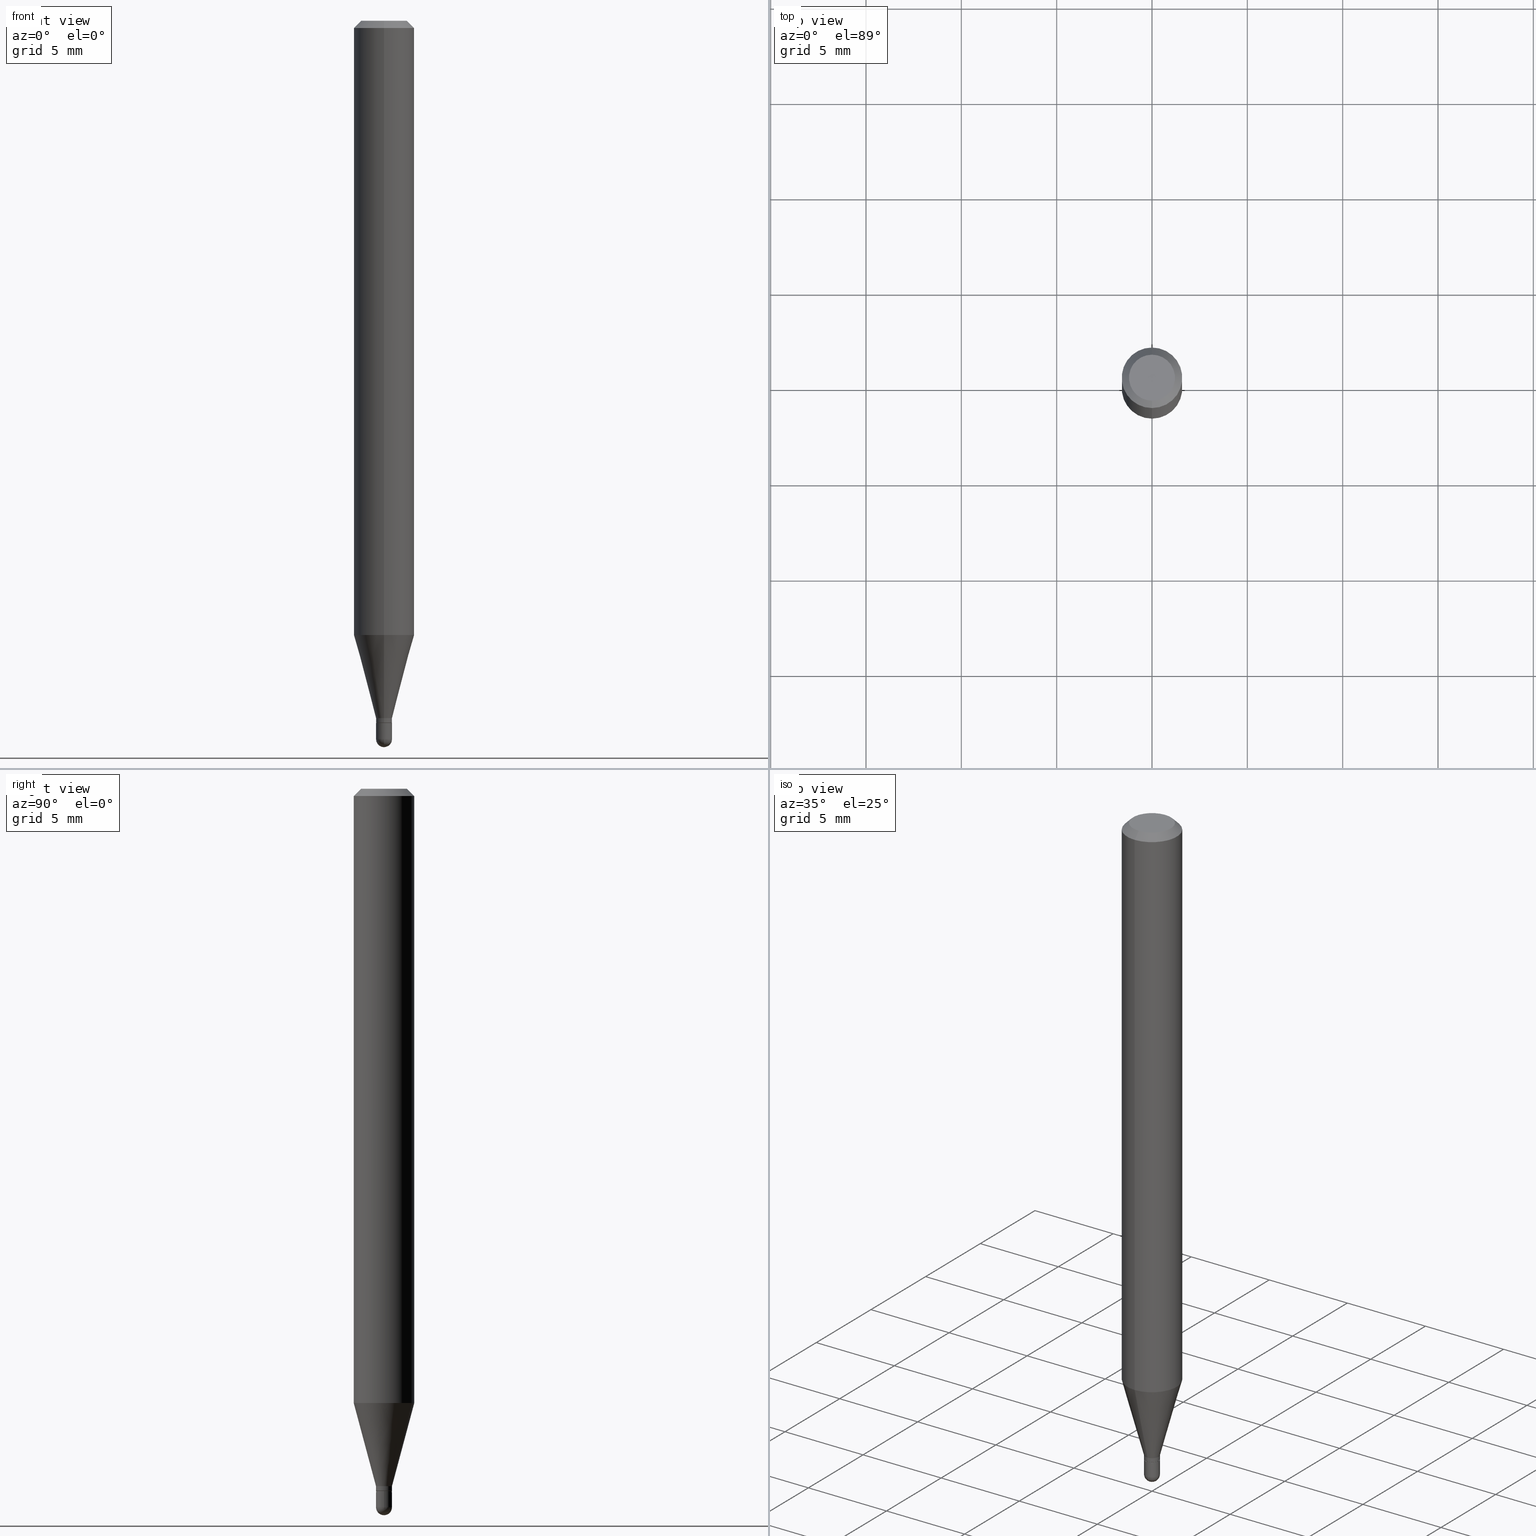
[diagram: canonical four-view strip — front | top / right | iso, engineering-drawing reading convention]
A machine part, canonical four-view strip (front | top / right | iso — engineering-drawing reading convention). The complete STEP part file that produces these views, byte-faithful:
ISO-10303-21;
HEADER;
FILE_DESCRIPTION (( 'STEP AP203' ),
    '1' );
FILE_NAME ('00768.STEP',
    '2024-03-07T18:16:10',
    ( '' ),
    ( '' ),
    'SwSTEP 2.0',
    'SolidWorks 2023',
    '' );
FILE_SCHEMA (( 'CONFIG_CONTROL_DESIGN' ));
ENDSEC;

DATA;
#1 = VERTEX_POINT ( 'NONE', #143 ) ;
#2 = FACE_OUTER_BOUND ( 'NONE', #406, .T. ) ;
#3 = CLOSED_SHELL ( 'NONE', ( #85, #151, #293, #424, #470 ) ) ;
#4 = DIRECTION ( 'NONE',  ( -6.982962677686265922E-15, -1.000000000000000000, 3.491465602701382301E-15 ) ) ;
#5 = CC_DESIGN_APPROVAL ( #358, ( #15 ) ) ;
#6 = CARTESIAN_POINT ( 'NONE',  ( 0.01650000000000000078, -1.152188841818234264E-16, 8.045691680063296230E-31 ) ) ;
#7 = EDGE_CURVE ( 'NONE', #153, #1, #486, .T. ) ;
#8 = CYLINDRICAL_SURFACE ( 'NONE', #72, 0.01650000000000000078 ) ;
#9 = VERTEX_POINT ( 'NONE', #274 ) ;
#10 = CARTESIAN_POINT ( 'NONE',  ( 2.806643806252725111E-16, 0.01649999999999489375, -1.440000000000000169 ) ) ;
#11 = VECTOR ( 'NONE', #231, 39.37007874015748143 ) ;
#12 = LOCAL_TIME ( 13, 16, 10.00000000000000000, #381 ) ;
#13 = ORIENTED_EDGE ( 'NONE', *, *, #111, .F. ) ;
#14 = DIRECTION ( 'NONE',  ( -2.445468806185136597E-29, 3.491481338843145583E-15, 1.000000000000000000 ) ) ;
#15 = PRODUCT_DEFINITION ( 'UNKNOWN', '', #139, #218 ) ;
#16 = ORIENTED_EDGE ( 'NONE', *, *, #411, .F. ) ;
#17 = CARTESIAN_POINT ( 'NONE',  ( 0.01650000000000000078, -5.177866825504383900E-15, -1.450000000000000178 ) ) ;
#18 = PERSON_AND_ORGANIZATION ( #322, #448 ) ;
#19 = VERTEX_POINT ( 'NONE', #455 ) ;
#20 = LENGTH_MEASURE_WITH_UNIT ( LENGTH_MEASURE( 0.02539999999999999897 ), #299 );
#21 = CALENDAR_DATE ( 2024, 7, 3 ) ;
#22 = EDGE_LOOP ( 'NONE', ( #155, #375, #98, #261 ) ) ;
#23 = CIRCLE ( 'NONE', #109, 0.01649999999999997649 ) ;
#24 = DIRECTION ( 'NONE',  ( 1.000000000000000000, 0.000000000000000000, 0.000000000000000000 ) ) ;
#25 = DATE_AND_TIME ( #21, #12 ) ;
#26 = ADVANCED_FACE ( 'NONE', ( #279 ), #229, .T. ) ;
#27 = FACE_OUTER_BOUND ( 'NONE', #419, .T. ) ;
#28 = CARTESIAN_POINT ( 'NONE',  ( 3.668219692011300648E-31, -5.237198404052076484E-17, -0.01500000000000000812 ) ) ;
#29 = CARTESIAN_POINT ( 'NONE',  ( -4.287811248607203282E-16, -0.06250000000000005551, -0.01499999999999979128 ) ) ;
#30 = ORIENTED_EDGE ( 'NONE', *, *, #313, .F. ) ;
#31 = CIRCLE ( 'NONE', #277, 0.01600000000000000033 ) ;
#32 = CONICAL_SURFACE ( 'NONE', #401, 0.06250000000000000000, 0.7853981633974483900 ) ;
#33 = VERTEX_POINT ( 'NONE', #198 ) ;
#34 = FACE_OUTER_BOUND ( 'NONE', #135, .T. ) ;
#35 = DIRECTION ( 'NONE',  ( 1.839019923739605048E-15, 0.2588190451025256245, 0.9659258262890669799 ) ) ;
#36 = EDGE_CURVE ( 'NONE', #357, #196, #31, .T. ) ;
#37 = DIRECTION ( 'NONE',  ( -6.982962677686266711E-15, -1.000000000000000000, 3.491465602701382696E-15 ) ) ;
#38 = CARTESIAN_POINT ( 'NONE',  ( 1.152188841818595907E-16, 0.01649999999999480702, -1.483500000000000263 ) ) ;
#39 = CIRCLE ( 'NONE', #45, 0.01649999999999992445 ) ;
#40 = LOCAL_TIME ( 13, 16, 10.00000000000000000, #185 ) ;
#41 = DIRECTION ( 'NONE',  ( -2.445479794674199112E-29, 3.491465602701382301E-15, 1.000000000000000000 ) ) ;
#42 = DIRECTION ( 'NONE',  ( 2.438088387897960049E-29, -3.491481338843145188E-15, -1.000000000000000000 ) ) ;
#43 = CARTESIAN_POINT ( 'NONE',  ( 2.166956045097350736E-46, -3.093811083820953725E-32, -8.861067058564863072E-18 ) ) ;
#44 = EDGE_CURVE ( 'NONE', #450, #412, #328, .T. ) ;
#45 = AXIS2_PLACEMENT_3D ( 'NONE', #108, #498, #351 ) ;
#46 = AXIS2_PLACEMENT_3D ( 'NONE', #404, #211, #86 ) ;
#47 = ORIENTED_EDGE ( 'NONE', *, *, #356, .T. ) ;
#48 = ORIENTED_EDGE ( 'NONE', *, *, #175, .F. ) ;
#49 = CARTESIAN_POINT ( 'NONE',  ( 3.626441949598504219E-29, -5.181633233392400831E-15, -1.483500000000000263 ) ) ;
#50 = COORDINATED_UNIVERSAL_TIME_OFFSET ( 5, 0, .BEHIND. ) ;
#51 = CIRCLE ( 'NONE', #371, 0.06250000000000000000 ) ;
#52 = ORIENTED_EDGE ( 'NONE', *, *, #311, .F. ) ;
#53 = LINE ( 'NONE', #6, #379 ) ;
#54 = ORIENTED_EDGE ( 'NONE', *, *, #68, .T. ) ;
#55 = CARTESIAN_POINT ( 'NONE',  ( 0.000000000000000000, 0.000000000000000000, 0.000000000000000000 ) ) ;
#56 = DATE_TIME_ROLE ( 'classification_date' ) ;
#57 = CARTESIAN_POINT ( 'NONE',  ( 3.545945702277588825E-29, -5.062625123917004495E-15, -1.450000000000000178 ) ) ;
#58 = EDGE_CURVE ( 'NONE', #1, #153, #39, .T. ) ;
#59 = APPLICATION_PROTOCOL_DEFINITION ( 'international standard', 'config_control_design', 1994, #461 ) ;
#60 = APPROVAL_DATE_TIME ( #410, #358 ) ;
#61 = PLANE ( 'NONE',  #121 ) ;
#62 = CONICAL_SURFACE ( 'NONE', #508, 0.01600000000000000033, 0.7853981633974739252 ) ;
#63 = VECTOR ( 'NONE', #238, 39.37007874015748143 ) ;
#64 =( CONVERSION_BASED_UNIT ( 'INCH', #20 ) LENGTH_UNIT ( ) NAMED_UNIT ( #459 ) );
#65 = DIRECTION ( 'NONE',  ( -2.445479794674199112E-29, 3.491465602701382301E-15, 1.000000000000000000 ) ) ;
#66 = LINE ( 'NONE', #390, #337 ) ;
#67 = CARTESIAN_POINT ( 'NONE',  ( 3.545945702277588825E-29, -5.062625123917004495E-15, -1.450000000000000178 ) ) ;
#68 = EDGE_CURVE ( 'NONE', #450, #102, #66, .T. ) ;
#69 = ORIENTED_EDGE ( 'NONE', *, *, #368, .T. ) ;
#70 = FACE_OUTER_BOUND ( 'NONE', #93, .T. ) ;
#71 = DIRECTION ( 'NONE',  ( -2.445479794674199112E-29, 3.491465602701382301E-15, 1.000000000000000000 ) ) ;
#72 = AXIS2_PLACEMENT_3D ( 'NONE', #444, #125, #92 ) ;
#73 = ORIENTED_EDGE ( 'NONE', *, *, #393, .T. ) ;
#74 = CARTESIAN_POINT ( 'NONE',  ( 3.668219692011300648E-31, -5.237198404052076484E-17, -0.01500000000000000812 ) ) ;
#75 = APPROVAL ( #221, 'UNSPECIFIED' ) ;
#76 = ORIENTED_EDGE ( 'NONE', *, *, #111, .T. ) ;
#77 = LINE ( 'NONE', #116, #278 ) ;
#78 = ADVANCED_FACE ( 'NONE', ( #223 ), #499, .T. ) ;
#79 = ORIENTED_EDGE ( 'NONE', *, *, #469, .T. ) ;
#80 = PLANE ( 'NONE',  #212 ) ;
#81 = AXIS2_PLACEMENT_3D ( 'NONE', #226, #145, #301 ) ;
#82 = AXIS2_PLACEMENT_3D ( 'NONE', #468, #41, #467 ) ;
#83 = DIRECTION ( 'NONE',  ( -2.445479794674199112E-29, 3.491465602701382301E-15, 1.000000000000000000 ) ) ;
#84 = CARTESIAN_POINT ( 'NONE',  ( 3.316907271900976096E-16, 0.04749999999999999362, -1.702751496575980682E-16 ) ) ;
#85 = ADVANCED_FACE ( 'NONE', ( #227 ), #423, .T. ) ;
#86 = DIRECTION ( 'NONE',  ( -6.982962677686266711E-15, -1.000000000000000000, 0.000000000000000000 ) ) ;
#87 = CIRCLE ( 'NONE', #438, 0.01649999999999992445 ) ;
#88 = VERTEX_POINT ( 'NONE', #418 ) ;
#89 = CARTESIAN_POINT ( 'NONE',  ( -1.152188841818228594E-16, -0.01649999999999992445, 5.760918244457254982E-17 ) ) ;
#90 = ADVANCED_BREP_SHAPE_REPRESENTATION ( '00768', ( #137, #307, #329 ), #478 ) ;
#91 = VERTEX_POINT ( 'NONE', #114 ) ;
#92 = DIRECTION ( 'NONE',  ( 1.000000000000000000, -6.982962677686268288E-15, 4.876176775795936914E-29 ) ) ;
#93 = EDGE_LOOP ( 'NONE', ( #369, #133, #445, #250 ) ) ;
#94 = LINE ( 'NONE', #89, #464 ) ;
#95 = CLOSED_SHELL ( 'NONE', ( #225, #117, #504, #284, #362, #78, #26, #203, #295, #207, #101, #158 ) ) ;
#96 = DATE_AND_TIME ( #144, #501 ) ;
#97 = VECTOR ( 'NONE', #476, 39.37007874015748143 ) ;
#98 = ORIENTED_EDGE ( 'NONE', *, *, #347, .F. ) ;
#99 = PERSON_AND_ORGANIZATION ( #322, #448 ) ;
#100 = PERSON_AND_ORGANIZATION_ROLE ( 'creator' ) ;
#101 = ADVANCED_FACE ( 'NONE', ( #271 ), #244, .T. ) ;
#102 = VERTEX_POINT ( 'NONE', #422 ) ;
#103 = CARTESIAN_POINT ( 'NONE',  ( -1.117274028429447972E-16, -0.01600000000000506226, -1.450000000000000178 ) ) ;
#104 = DIRECTION ( 'NONE',  ( -2.445479794674199112E-29, 3.491465602701382301E-15, 1.000000000000000000 ) ) ;
#105 = PERSON_AND_ORGANIZATION ( #322, #448 ) ;
#106 = CARTESIAN_POINT ( 'NONE',  ( -0.01650000000000000078, 1.172395514004165362E-16, -8.116242898920594736E-31 ) ) ;
#107 = CIRCLE ( 'NONE', #191, 0.06250000000000000000 ) ;
#108 = CARTESIAN_POINT ( 'NONE',  ( 3.544722962380251934E-29, -5.060879391115653261E-15, -1.449500000000000233 ) ) ;
#109 = AXIS2_PLACEMENT_3D ( 'NONE', #49, #168, #134 ) ;
#110 = DIRECTION ( 'NONE',  ( -6.982962677686266711E-15, -1.000000000000000000, 0.000000000000000000 ) ) ;
#111 = EDGE_CURVE ( 'NONE', #102, #88, #107, .T. ) ;
#112 = DIRECTION ( 'NONE',  ( 1.000000000000000000, -6.982962677686268288E-15, 4.876176775795936914E-29 ) ) ;
#113 = ORIENTED_EDGE ( 'NONE', *, *, #189, .F. ) ;
#114 = CARTESIAN_POINT ( 'NONE',  ( 4.440892098500937762E-16, 0.06249999999999993755, -0.01500000000000022669 ) ) ;
#115 = DIRECTION ( 'NONE',  ( -6.982962677686265922E-15, -1.000000000000000000, 0.000000000000000000 ) ) ;
#116 = CARTESIAN_POINT ( 'NONE',  ( -4.364351673553916201E-16, -0.06250000000000000000, 2.182166001688363938E-16 ) ) ;
#117 = ADVANCED_FACE ( 'NONE', ( #462 ), #62, .T. ) ;
#118 = CARTESIAN_POINT ( 'NONE',  ( 4.440892098500625669E-16, 0.06250000000000000000, -2.182166001688363938E-16 ) ) ;
#119 = CC_DESIGN_PERSON_AND_ORGANIZATION_ASSIGNMENT ( #296, #342, ( #139 ) ) ;
#120 = CARTESIAN_POINT ( 'NONE',  ( 0.000000000000000000, 0.000000000000000000, 0.000000000000000000 ) ) ;
#121 = AXIS2_PLACEMENT_3D ( 'NONE', #67, #505, #382 ) ;
#122 = CIRCLE ( 'NONE', #82, 0.06250000000000000000 ) ;
#123 = DIRECTION ( 'NONE',  ( -2.445479794674199112E-29, 3.491465602701382301E-15, 1.000000000000000000 ) ) ;
#124 = EDGE_CURVE ( 'NONE', #9, #310, #127, .T. ) ;
#125 = DIRECTION ( 'NONE',  ( -2.445468806185136597E-29, 3.491481338843145583E-15, 1.000000000000000000 ) ) ;
#126 = EDGE_CURVE ( 'NONE', #357, #153, #350, .T. ) ;
#127 = CIRCLE ( 'NONE', #420, 0.01650000000000000078 ) ;
#128 = VECTOR ( 'NONE', #318, 39.37007874015748143 ) ;
#129 = APPROVAL_PERSON_ORGANIZATION ( #493, #179, #339 ) ;
#130 = EDGE_LOOP ( 'NONE', ( #471, #54, #163, #184 ) ) ;
#131 = FACE_OUTER_BOUND ( 'NONE', #235, .T. ) ;
#132 = CC_DESIGN_PERSON_AND_ORGANIZATION_ASSIGNMENT ( #414, #446, ( #183 ) ) ;
#133 = ORIENTED_EDGE ( 'NONE', *, *, #138, .T. ) ;
#134 = DIRECTION ( 'NONE',  ( 6.982962677686265922E-15, 1.000000000000000000, 0.000000000000000000 ) ) ;
#135 = EDGE_LOOP ( 'NONE', ( #288, #156 ) ) ;
#136 =( NAMED_UNIT ( * ) PLANE_ANGLE_UNIT ( ) SI_UNIT ( $, .RADIAN. ) );
#137 = MANIFOLD_SOLID_BREP ( 'Body-Move/Copy2[1]', #3 ) ;
#138 = EDGE_CURVE ( 'NONE', #33, #257, #171, .T. ) ;
#139 = PRODUCT_DEFINITION_FORMATION_WITH_SPECIFIED_SOURCE ( 'ANY', '', #249, .NOT_KNOWN. ) ;
#140 = ORIENTED_EDGE ( 'NONE', *, *, #324, .T. ) ;
#141 = APPROVAL_DATE_TIME ( #96, #179 ) ;
#142 = DIRECTION ( 'NONE',  ( 6.982962677686266711E-15, 1.000000000000000000, 0.000000000000000000 ) ) ;
#143 = CARTESIAN_POINT ( 'NONE',  ( -1.152188841817878290E-16, -0.01650000000000504188, -1.449500000000000233 ) ) ;
#144 = CALENDAR_DATE ( 2024, 7, 3 ) ;
#145 = DIRECTION ( 'NONE',  ( -2.445479794674199112E-29, 3.491465602701382301E-15, 1.000000000000000000 ) ) ;
#146 = ORIENTED_EDGE ( 'NONE', *, *, #388, .T. ) ;
#147 = APPROVAL_DATE_TIME ( #344, #75 ) ;
#148 = CYLINDRICAL_SURFACE ( 'NONE', #160, 0.01649999999999992445 ) ;
#149 = CIRCLE ( 'NONE', #437, 0.01650000000000000078 ) ;
#150 = AXIS2_PLACEMENT_3D ( 'NONE', #396, #511, #355 ) ;
#151 = ADVANCED_FACE ( 'NONE', ( #70 ), #427, .T. ) ;
#152 = DIRECTION ( 'NONE',  ( -2.445468806185136597E-29, 3.491481338843145583E-15, 1.000000000000000000 ) ) ;
#153 = VERTEX_POINT ( 'NONE', #415 ) ;
#154 = CARTESIAN_POINT ( 'NONE',  ( 3.101664781570917054E-29, -4.428315424870604109E-15, -1.268325662851832680 ) ) ;
#155 = ORIENTED_EDGE ( 'NONE', *, *, #237, .T. ) ;
#156 = ORIENTED_EDGE ( 'NONE', *, *, #36, .F. ) ;
#157 = DIRECTION ( 'NONE',  ( -2.445479794674199112E-29, 3.491465602701382301E-15, 1.000000000000000000 ) ) ;
#158 = ADVANCED_FACE ( 'NONE', ( #458 ), #314, .T. ) ;
#159 = AXIS2_PLACEMENT_3D ( 'NONE', #188, #343, #110 ) ;
#160 = AXIS2_PLACEMENT_3D ( 'NONE', #348, #228, #309 ) ;
#161 = ORIENTED_EDGE ( 'NONE', *, *, #251, .T. ) ;
#162 = DIRECTION ( 'NONE',  ( -2.445479794674199112E-29, 3.491465602701382301E-15, 1.000000000000000000 ) ) ;
#163 = ORIENTED_EDGE ( 'NONE', *, *, #237, .F. ) ;
#164 = CARTESIAN_POINT ( 'NONE',  ( 3.627852973975650294E-29, -5.179612566173807770E-15, -1.483500000000000263 ) ) ;
#165 = DIRECTION ( 'NONE',  ( -6.982962677686265922E-15, -1.000000000000000000, 3.483106191921935554E-15 ) ) ;
#166 = AXIS2_PLACEMENT_3D ( 'NONE', #463, #71, #115 ) ;
#167 = LINE ( 'NONE', #316, #500 ) ;
#168 = DIRECTION ( 'NONE',  ( 1.000000000000000000, -6.982962677686265922E-15, 4.883557194083112340E-29 ) ) ;
#169 = EDGE_CURVE ( 'NONE', #353, #19, #305, .T. ) ;
#170 = PRODUCT_DEFINITION_SHAPE ( 'NONE', 'NONE',  #15 ) ;
#171 = CIRCLE ( 'NONE', #405, 0.01649999999999997649 ) ;
#172 = ORIENTED_EDGE ( 'NONE', *, *, #485, .T. ) ;
#173 = CARTESIAN_POINT ( 'NONE',  ( -1.152188841817876318E-16, -0.01650000000000495168, -1.440000000000000169 ) ) ;
#174 = EDGE_LOOP ( 'NONE', ( #434, #76, #69, #447 ) ) ;
#175 = EDGE_CURVE ( 'NONE', #354, #91, #222, .T. ) ;
#176 = DIRECTION ( 'NONE',  ( -2.445479794674199112E-29, 3.491465602701382696E-15, 1.000000000000000000 ) ) ;
#177 = COORDINATED_UNIVERSAL_TIME_OFFSET ( 5, 0, .BEHIND. ) ;
#178 = ORIENTED_EDGE ( 'NONE', *, *, #68, .F. ) ;
#179 = APPROVAL ( #181, 'UNSPECIFIED' ) ;
#180 = AXIS2_PLACEMENT_3D ( 'NONE', #503, #233, #264 ) ;
#181 = APPROVAL_STATUS ( 'not_yet_approved' ) ;
#182 = CARTESIAN_POINT ( 'NONE',  ( 0.000000000000000000, 0.000000000000000000, 0.000000000000000000 ) ) ;
#183 = SECURITY_CLASSIFICATION ( '', '', #376 ) ;
#184 = ORIENTED_EDGE ( 'NONE', *, *, #449, .F. ) ;
#185 = COORDINATED_UNIVERSAL_TIME_OFFSET ( 5, 0, .BEHIND. ) ;
#186 = DIRECTION ( 'NONE',  ( 5.024295867788190974E-15, 0.7071067811865681119, 0.7071067811865270336 ) ) ;
#187 = UNCERTAINTY_MEASURE_WITH_UNIT (LENGTH_MEASURE( 1.000000000000000082E-05 ), #64, 'distance_accuracy_value', 'NONE');
#188 = CARTESIAN_POINT ( 'NONE',  ( 3.545945702277588825E-29, -5.062625123917004495E-15, -1.450000000000000178 ) ) ;
#189 = EDGE_CURVE ( 'NONE', #19, #442, #149, .T. ) ;
#190 = DIRECTION ( 'NONE',  ( 4.937700262164548042E-15, 0.7071067811865451302, -0.7071067811865499042 ) ) ;
#191 = AXIS2_PLACEMENT_3D ( 'NONE', #154, #65, #502 ) ;
#192 = VECTOR ( 'NONE', #330, 39.37007874015748854 ) ;
#193 = DIRECTION ( 'NONE',  ( -6.982962677686266711E-15, -1.000000000000000000, 0.000000000000000000 ) ) ;
#194 = AXIS2_PLACEMENT_3D ( 'NONE', #164, #400, #236 ) ;
#195 = CARTESIAN_POINT ( 'NONE',  ( 3.627852973975650294E-29, -5.179612566173807770E-15, -1.483500000000000263 ) ) ;
#196 = VERTEX_POINT ( 'NONE', #103 ) ;
#197 = DIRECTION ( 'NONE',  ( -2.445468806185136597E-29, 3.491481338843145583E-15, 1.000000000000000000 ) ) ;
#198 = CARTESIAN_POINT ( 'NONE',  ( 3.667497697089131858E-29, -5.238232341874015890E-15, -1.500000000000000222 ) ) ;
#199 = DIRECTION ( 'NONE',  ( -4.937700262164674260E-15, -0.7071067811865632269, 0.7071067811865319186 ) ) ;
#200 = CIRCLE ( 'NONE', #150, 0.04749999999999999362 ) ;
#201 = DIRECTION ( 'NONE',  ( -6.982962677686265922E-15, -1.000000000000000000, 3.483106191921935554E-15 ) ) ;
#202 = DIRECTION ( 'NONE',  ( 1.000000000000000000, -6.982962677686243834E-15, 0.000000000000000000 ) ) ;
#203 = ADVANCED_FACE ( 'NONE', ( #345 ), #407, .T. ) ;
#204 = CARTESIAN_POINT ( 'NONE',  ( 3.627852973975650294E-29, -5.179612566173807770E-15, -1.483500000000000263 ) ) ;
#205 = CC_DESIGN_APPROVAL ( #75, ( #139 ) ) ;
#206 = SPHERICAL_SURFACE ( 'NONE', #364, 0.01649999999999997649 ) ;
#207 = ADVANCED_FACE ( 'NONE', ( #34 ), #61, .F. ) ;
#208 = ORIENTED_EDGE ( 'NONE', *, *, #234, .T. ) ;
#209 = DIRECTION ( 'NONE',  ( 6.982962677686266711E-15, 1.000000000000000000, 0.000000000000000000 ) ) ;
#210 = ORIENTED_EDGE ( 'NONE', *, *, #411, .T. ) ;
#211 = DIRECTION ( 'NONE',  ( -2.445479794674199112E-29, 3.491465602701382301E-15, 1.000000000000000000 ) ) ;
#212 = AXIS2_PLACEMENT_3D ( 'NONE', #287, #42, #435 ) ;
#213 = APPROVAL_ROLE ( '' ) ;
#214 = ORIENTED_EDGE ( 'NONE', *, *, #189, .T. ) ;
#215 = ORIENTED_EDGE ( 'NONE', *, *, #388, .F. ) ;
#216 = DIRECTION ( 'NONE',  ( 6.982962677686265922E-15, 1.000000000000000000, -3.483106191921935554E-15 ) ) ;
#217 = DIRECTION ( 'NONE',  ( -2.445479794674199112E-29, 3.491465602701382301E-15, 1.000000000000000000 ) ) ;
#218 = DESIGN_CONTEXT ( 'detailed design', #282, 'design' ) ;
#219 = ORIENTED_EDGE ( 'NONE', *, *, #302, .T. ) ;
#220 = AXIS2_PLACEMENT_3D ( 'NONE', #182, #152, #112 ) ;
#221 = APPROVAL_STATUS ( 'not_yet_approved' ) ;
#222 = LINE ( 'NONE', #460, #370 ) ;
#223 = FACE_OUTER_BOUND ( 'NONE', #327, .T. ) ;
#224 = CALENDAR_DATE ( 2024, 7, 3 ) ;
#225 = ADVANCED_FACE ( 'NONE', ( #27 ), #148, .T. ) ;
#226 = CARTESIAN_POINT ( 'NONE',  ( 0.000000000000000000, 0.000000000000000000, 0.000000000000000000 ) ) ;
#227 = FACE_OUTER_BOUND ( 'NONE', #373, .T. ) ;
#228 = DIRECTION ( 'NONE',  ( -2.445479794674199112E-29, 3.491465602701382301E-15, 1.000000000000000000 ) ) ;
#229 = CYLINDRICAL_SURFACE ( 'NONE', #289, 0.06250000000000000000 ) ;
#230 = ORIENTED_EDGE ( 'NONE', *, *, #175, .T. ) ;
#231 = DIRECTION ( 'NONE',  ( -2.445468806185136877E-29, 3.491481338843145188E-15, 1.000000000000000000 ) ) ;
#232 = APPROVAL_PERSON_ORGANIZATION ( #266, #358, #213 ) ;
#233 = DIRECTION ( 'NONE',  ( -2.445479794674199112E-29, 3.491465602701382301E-15, 1.000000000000000000 ) ) ;
#234 = EDGE_CURVE ( 'NONE', #402, #432, #387, .T. ) ;
#235 = EDGE_LOOP ( 'NONE', ( #481, #443, #47, #210, #113 ) ) ;
#236 = DIRECTION ( 'NONE',  ( 1.000000000000000000, -6.982962677686243834E-15, 0.000000000000000000 ) ) ;
#237 = EDGE_CURVE ( 'NONE', #88, #102, #122, .T. ) ;
#238 = DIRECTION ( 'NONE',  ( -4.851104656540964275E-15, -0.7071067811865500152, -0.7071067811865450192 ) ) ;
#239 = DIRECTION ( 'NONE',  ( -2.445479794674199112E-29, 3.491465602701382301E-15, 1.000000000000000000 ) ) ;
#240 = LOCAL_TIME ( 13, 16, 10.00000000000000000, #50 ) ;
#241 = DIRECTION ( 'NONE',  ( -2.445479794674199112E-29, 3.491465602701382301E-15, 1.000000000000000000 ) ) ;
#242 = CARTESIAN_POINT ( 'NONE',  ( -0.01650000000000000078, -5.003890702347768399E-15, -1.483500000000000263 ) ) ;
#243 = DIRECTION ( 'NONE',  ( -1.000000000000000000, 6.982962677686266711E-15, -4.883557194083112901E-29 ) ) ;
#244 = CONICAL_SURFACE ( 'NONE', #159, 0.01600000000000000033, 0.7853981633974739252 ) ;
#245 = EDGE_CURVE ( 'NONE', #412, #450, #87, .T. ) ;
#246 = AXIS2_PLACEMENT_3D ( 'NONE', #84, #363, #285 ) ;
#247 = CC_DESIGN_DATE_AND_TIME_ASSIGNMENT ( #490, #270, ( #15 ) ) ;
#248 = EDGE_LOOP ( 'NONE', ( #479, #73, #403, #346 ) ) ;
#249 = PRODUCT ( '00768', '00768', '', ( #380 ) ) ;
#250 = ORIENTED_EDGE ( 'NONE', *, *, #469, .F. ) ;
#251 = EDGE_CURVE ( 'NONE', #91, #432, #51, .T. ) ;
#252 = ORIENTED_EDGE ( 'NONE', *, *, #44, .T. ) ;
#253 = AXIS2_PLACEMENT_3D ( 'NONE', #28, #389, #263 ) ;
#254 = CIRCLE ( 'NONE', #421, 0.01650000000000000078 ) ;
#255 = FACE_OUTER_BOUND ( 'NONE', #248, .T. ) ;
#256 = CALENDAR_DATE ( 2024, 7, 3 ) ;
#257 = VERTEX_POINT ( 'NONE', #320 ) ;
#258 = APPLICATION_PROTOCOL_DEFINITION ( 'international standard', 'config_control_design', 1994, #282 ) ;
#259 = CC_DESIGN_PERSON_AND_ORGANIZATION_ASSIGNMENT ( #18, #100, ( #15 ) ) ;
#260 = PERSON_AND_ORGANIZATION ( #322, #448 ) ;
#261 = ORIENTED_EDGE ( 'NONE', *, *, #368, .F. ) ;
#262 = CALENDAR_DATE ( 2024, 7, 3 ) ;
#263 = DIRECTION ( 'NONE',  ( 6.982962677686265922E-15, 1.000000000000000000, -3.483106191921935554E-15 ) ) ;
#264 = DIRECTION ( 'NONE',  ( -6.982962677686265922E-15, -1.000000000000000000, 0.000000000000000000 ) ) ;
#265 = EDGE_CURVE ( 'NONE', #102, #91, #439, .T. ) ;
#266 = PERSON_AND_ORGANIZATION ( #322, #448 ) ;
#267 = DIRECTION ( 'NONE',  ( -2.445468806185136597E-29, 3.491481338843145583E-15, 1.000000000000000000 ) ) ;
#268 = CIRCLE ( 'NONE', #46, 0.01600000000000000033 ) ;
#269 = DIRECTION ( 'NONE',  ( -6.982962677686265922E-15, -1.000000000000000000, 0.000000000000000000 ) ) ;
#270 = DATE_TIME_ROLE ( 'creation_date' ) ;
#271 = FACE_OUTER_BOUND ( 'NONE', #334, .T. ) ;
#272 = DIRECTION ( 'NONE',  ( -6.982962677686265922E-15, -1.000000000000000000, 3.491465602701382301E-15 ) ) ;
#273 = DIRECTION ( 'NONE',  ( -1.000000000000000000, 7.105427357601001070E-15, -4.926315508542082329E-29 ) ) ;
#274 = CARTESIAN_POINT ( 'NONE',  ( 0.01650000000000000078, -5.236349137930007031E-15, -1.483500000000000263 ) ) ;
#275 = CC_DESIGN_DATE_AND_TIME_ASSIGNMENT ( #25, #56, ( #183 ) ) ;
#276 = PLANE ( 'NONE',  #246 ) ;
#277 = AXIS2_PLACEMENT_3D ( 'NONE', #426, #104, #193 ) ;
#278 = VECTOR ( 'NONE', #433, 39.37007874015748143 ) ;
#279 = FACE_OUTER_BOUND ( 'NONE', #174, .T. ) ;
#280 = CC_DESIGN_SECURITY_CLASSIFICATION ( #183, ( #139 ) ) ;
#281 = FACE_OUTER_BOUND ( 'NONE', #22, .T. ) ;
#282 = APPLICATION_CONTEXT ( 'configuration controlled 3d designs of mechanical parts and assemblies' ) ;
#283 = DIRECTION ( 'NONE',  ( -6.982962677686265922E-15, -1.000000000000000000, 0.000000000000000000 ) ) ;
#284 = ADVANCED_FACE ( 'NONE', ( #281 ), #394, .T. ) ;
#285 = DIRECTION ( 'NONE',  ( 6.982962677686265922E-15, 1.000000000000000000, -3.491465602701382696E-15 ) ) ;
#286 = CIRCLE ( 'NONE', #473, 0.01650000000000000078 ) ;
#287 = CARTESIAN_POINT ( 'NONE',  ( 1.152188841818588511E-16, 0.01649999999999493885, -1.450000000000000178 ) ) ;
#288 = ORIENTED_EDGE ( 'NONE', *, *, #485, .F. ) ;
#289 = AXIS2_PLACEMENT_3D ( 'NONE', #303, #452, #272 ) ;
#290 = CIRCLE ( 'NONE', #194, 0.01650000000000000078 ) ;
#291 = ORIENTED_EDGE ( 'NONE', *, *, #302, .F. ) ;
#292 = ORIENTED_EDGE ( 'NONE', *, *, #58, .F. ) ;
#293 = ADVANCED_FACE ( 'NONE', ( #399 ), #80, .F. ) ;
#294 = DIRECTION ( 'NONE',  ( -2.445468806185136877E-29, 3.491481338843145188E-15, 1.000000000000000000 ) ) ;
#295 = ADVANCED_FACE ( 'NONE', ( #2 ), #276, .F. ) ;
#296 = PERSON_AND_ORGANIZATION ( #322, #448 ) ;
#297 = EDGE_LOOP ( 'NONE', ( #492, #214 ) ) ;
#298 = AXIS2_PLACEMENT_3D ( 'NONE', #512, #197, #202 ) ;
#299 =( LENGTH_UNIT ( ) NAMED_UNIT ( * ) SI_UNIT ( $, .METRE. ) );
#300 = ORIENTED_EDGE ( 'NONE', *, *, #325, .T. ) ;
#301 = DIRECTION ( 'NONE',  ( -6.982962677686265922E-15, -1.000000000000000000, 3.491465602701382696E-15 ) ) ;
#302 = EDGE_CURVE ( 'NONE', #402, #354, #441, .T. ) ;
#303 = CARTESIAN_POINT ( 'NONE',  ( 0.000000000000000000, 0.000000000000000000, 0.000000000000000000 ) ) ;
#304 = PERSON_AND_ORGANIZATION_ROLE ( 'design_owner' ) ;
#305 = LINE ( 'NONE', #106, #11 ) ;
#306 = ORIENTED_EDGE ( 'NONE', *, *, #124, .T. ) ;
#307 = MANIFOLD_SOLID_BREP ( 'Body-Move/Copy2[2]', #95 ) ;
#308 = AXIS2_PLACEMENT_3D ( 'NONE', #506, #383, #269 ) ;
#309 = DIRECTION ( 'NONE',  ( -6.982962677686265922E-15, -1.000000000000000000, 3.491465602701382696E-15 ) ) ;
#310 = VERTEX_POINT ( 'NONE', #38 ) ;
#311 = EDGE_CURVE ( 'NONE', #442, #19, #317, .T. ) ;
#312 = CARTESIAN_POINT ( 'NONE',  ( 3.626441949598504219E-29, -5.181633233392400831E-15, -1.483500000000000263 ) ) ;
#313 = EDGE_CURVE ( 'NONE', #196, #1, #167, .T. ) ;
#314 = CYLINDRICAL_SURFACE ( 'NONE', #81, 0.01649999999999992445 ) ;
#315 = ORIENTED_EDGE ( 'NONE', *, *, #234, .F. ) ;
#316 = CARTESIAN_POINT ( 'NONE',  ( -1.117274028429447972E-16, -0.01600000000000506226, -1.450000000000000178 ) ) ;
#317 = CIRCLE ( 'NONE', #298, 0.01650000000000000078 ) ;
#318 = DIRECTION ( 'NONE',  ( -2.445479794674199112E-29, 3.491465602701382696E-15, 1.000000000000000000 ) ) ;
#319 = EDGE_LOOP ( 'NONE', ( #291, #208, #509, #48 ) ) ;
#320 = CARTESIAN_POINT ( 'NONE',  ( -1.172395514003801746E-16, -0.01650000000000517025, -1.483500000000000263 ) ) ;
#321 = CARTESIAN_POINT ( 'NONE',  ( 3.668219692011300648E-31, -5.237198404052076484E-17, -0.01500000000000000812 ) ) ;
#322 = PERSON ( 'UNSPECIFIED', 'UNSPECIFIED', 'UNSPECIFIED', ('UNSPECIFIED'), ('UNSPECIFIED'), ('UNSPECIFIED') ) ;
#323 = CARTESIAN_POINT ( 'NONE',  ( 1.172395514004159938E-16, 0.01649999999999992445, -5.760918244457254982E-17 ) ) ;
#324 = EDGE_CURVE ( 'NONE', #153, #450, #436, .T. ) ;
#325 = EDGE_CURVE ( 'NONE', #354, #402, #200, .T. ) ;
#326 = LINE ( 'NONE', #335, #192 ) ;
#327 = EDGE_LOOP ( 'NONE', ( #178, #252, #395, #13 ) ) ;
#328 = CIRCLE ( 'NONE', #180, 0.01649999999999992445 ) ;
#329 = AXIS2_PLACEMENT_3D ( 'NONE', #55, #489, #24 ) ;
#330 = DIRECTION ( 'NONE',  ( -1.807323732225334872E-15, -0.2588190451025188521, 0.9659258262890687563 ) ) ;
#331 = ORIENTED_EDGE ( 'NONE', *, *, #325, .F. ) ;
#332 = EDGE_CURVE ( 'NONE', #353, #257, #286, .T. ) ;
#333 = CARTESIAN_POINT ( 'NONE',  ( 3.668219692011300648E-31, -5.237198404052076484E-17, -0.01500000000000000812 ) ) ;
#334 = EDGE_LOOP ( 'NONE', ( #341, #416, #487, #378 ) ) ;
#335 = CARTESIAN_POINT ( 'NONE',  ( -1.152188841817876318E-16, -0.01650000000000495168, -1.440000000000000169 ) ) ;
#336 = EDGE_LOOP ( 'NONE', ( #315, #331, #230, #161 ) ) ;
#337 = VECTOR ( 'NONE', #35, 39.37007874015748143 ) ;
#338 = AXIS2_PLACEMENT_3D ( 'NONE', #43, #239, #37 ) ;
#339 = APPROVAL_ROLE ( '' ) ;
#340 = DIRECTION ( 'NONE',  ( 1.000000000000000000, -6.982962677686243834E-15, 0.000000000000000000 ) ) ;
#341 = ORIENTED_EDGE ( 'NONE', *, *, #126, .F. ) ;
#342 = PERSON_AND_ORGANIZATION_ROLE ( 'design_supplier' ) ;
#343 = DIRECTION ( 'NONE',  ( -2.445479794674199112E-29, 3.491465602701382301E-15, 1.000000000000000000 ) ) ;
#344 = DATE_AND_TIME ( #224, #240 ) ;
#345 = FACE_OUTER_BOUND ( 'NONE', #336, .T. ) ;
#346 = ORIENTED_EDGE ( 'NONE', *, *, #356, .F. ) ;
#347 = EDGE_CURVE ( 'NONE', #432, #91, #349, .T. ) ;
#348 = CARTESIAN_POINT ( 'NONE',  ( 0.000000000000000000, 0.000000000000000000, 0.000000000000000000 ) ) ;
#349 = CIRCLE ( 'NONE', #408, 0.06250000000000000000 ) ;
#350 = LINE ( 'NONE', #377, #397 ) ;
#351 = DIRECTION ( 'NONE',  ( -6.982962677686265922E-15, -1.000000000000000000, 0.000000000000000000 ) ) ;
#352 = FACE_OUTER_BOUND ( 'NONE', #130, .T. ) ;
#353 = VERTEX_POINT ( 'NONE', #242 ) ;
#354 = VERTEX_POINT ( 'NONE', #359 ) ;
#355 = DIRECTION ( 'NONE',  ( -6.982962677686266711E-15, -1.000000000000000000, 3.491465602701382696E-15 ) ) ;
#356 = EDGE_CURVE ( 'NONE', #257, #9, #290, .T. ) ;
#357 = VERTEX_POINT ( 'NONE', #391 ) ;
#358 = APPROVAL ( #453, 'UNSPECIFIED' ) ;
#359 = CARTESIAN_POINT ( 'NONE',  ( 3.840629472727447874E-16, 0.04749999999999999362, -1.747056831868805136E-16 ) ) ;
#360 = ORIENTED_EDGE ( 'NONE', *, *, #58, .T. ) ;
#361 = DIRECTION ( 'NONE',  ( -2.445468806185136597E-29, 3.491481338843145583E-15, 1.000000000000000000 ) ) ;
#362 = ADVANCED_FACE ( 'NONE', ( #352 ), #398, .T. ) ;
#363 = DIRECTION ( 'NONE',  ( 2.445479794674198272E-29, -3.491465602701382696E-15, -1.000000000000000000 ) ) ;
#364 = AXIS2_PLACEMENT_3D ( 'NONE', #409, #243, #209 ) ;
#365 = CC_DESIGN_PERSON_AND_ORGANIZATION_ASSIGNMENT ( #99, #304, ( #249 ) ) ;
#366 = CARTESIAN_POINT ( 'NONE',  ( -3.773273898774340269E-16, -0.04749999999999999362, 1.569835490697507813E-16 ) ) ;
#367 = ORIENTED_EDGE ( 'NONE', *, *, #44, .F. ) ;
#368 = EDGE_CURVE ( 'NONE', #88, #432, #77, .T. ) ;
#369 = ORIENTED_EDGE ( 'NONE', *, *, #393, .F. ) ;
#370 = VECTOR ( 'NONE', #190, 39.37007874015748143 ) ;
#371 = AXIS2_PLACEMENT_3D ( 'NONE', #321, #123, #201 ) ;
#372 = FACE_OUTER_BOUND ( 'NONE', #319, .T. ) ;
#373 = EDGE_LOOP ( 'NONE', ( #79, #466, #52, #16, #306 ) ) ;
#374 = COORDINATED_UNIVERSAL_TIME_OFFSET ( 5, 0, .BEHIND. ) ;
#375 = ORIENTED_EDGE ( 'NONE', *, *, #265, .T. ) ;
#376 = SECURITY_CLASSIFICATION_LEVEL ( 'unclassified' ) ;
#377 = CARTESIAN_POINT ( 'NONE',  ( 1.136868377216514815E-16, 0.01599999999999493841, -1.450000000000000178 ) ) ;
#378 = ORIENTED_EDGE ( 'NONE', *, *, #7, .F. ) ;
#379 = VECTOR ( 'NONE', #294, 39.37007874015748143 ) ;
#380 = MECHANICAL_CONTEXT ( 'NONE', #461, 'mechanical' ) ;
#381 = COORDINATED_UNIVERSAL_TIME_OFFSET ( 5, 0, .BEHIND. ) ;
#382 = DIRECTION ( 'NONE',  ( -6.982962677686265922E-15, -1.000000000000000000, 3.491465602701382696E-15 ) ) ;
#383 = DIRECTION ( 'NONE',  ( -2.445479794674199112E-29, 3.491465602701382301E-15, 1.000000000000000000 ) ) ;
#384 = SHAPE_DEFINITION_REPRESENTATION ( #170, #90 ) ;
#385 = DIRECTION ( 'NONE',  ( 1.000000000000000000, -6.982962677686243834E-15, 0.000000000000000000 ) ) ;
#386 = ORIENTED_EDGE ( 'NONE', *, *, #7, .T. ) ;
#387 = LINE ( 'NONE', #29, #63 ) ;
#388 = EDGE_CURVE ( 'NONE', #1, #412, #94, .T. ) ;
#389 = DIRECTION ( 'NONE',  ( 2.445479794674199112E-29, -3.491465602701382301E-15, -1.000000000000000000 ) ) ;
#390 = CARTESIAN_POINT ( 'NONE',  ( 1.172395514004511721E-16, 0.01649999999999489375, -1.440000000000000169 ) ) ;
#391 = CARTESIAN_POINT ( 'NONE',  ( 1.154631945610514378E-16, 0.01599999999999493841, -1.450000000000000178 ) ) ;
#392 = ORIENTED_EDGE ( 'NONE', *, *, #126, .T. ) ;
#393 = EDGE_CURVE ( 'NONE', #33, #310, #23, .T. ) ;
#394 = CYLINDRICAL_SURFACE ( 'NONE', #510, 0.06250000000000000000 ) ;
#395 = ORIENTED_EDGE ( 'NONE', *, *, #449, .T. ) ;
#396 = CARTESIAN_POINT ( 'NONE',  ( 2.166956045097350736E-46, -3.093811083820953725E-32, -8.861067058564863072E-18 ) ) ;
#397 = VECTOR ( 'NONE', #186, 39.37007874015748143 ) ;
#398 = CONICAL_SURFACE ( 'NONE', #474, 0.01649999999999992445, 0.2617993877991509621 ) ;
#399 = FACE_OUTER_BOUND ( 'NONE', #297, .T. ) ;
#400 = DIRECTION ( 'NONE',  ( -2.445468806185136597E-29, 3.491481338843145583E-15, 1.000000000000000000 ) ) ;
#401 = AXIS2_PLACEMENT_3D ( 'NONE', #333, #413, #216 ) ;
#402 = VERTEX_POINT ( 'NONE', #366 ) ;
#403 = ORIENTED_EDGE ( 'NONE', *, *, #124, .F. ) ;
#404 = CARTESIAN_POINT ( 'NONE',  ( 3.545945702277588825E-29, -5.062625123917004495E-15, -1.450000000000000178 ) ) ;
#405 = AXIS2_PLACEMENT_3D ( 'NONE', #312, #273, #497 ) ;
#406 = EDGE_LOOP ( 'NONE', ( #300, #219 ) ) ;
#407 = CONICAL_SURFACE ( 'NONE', #253, 0.06250000000000000000, 0.7853981633974483900 ) ;
#408 = AXIS2_PLACEMENT_3D ( 'NONE', #74, #162, #165 ) ;
#409 = CARTESIAN_POINT ( 'NONE',  ( 3.626441949598504219E-29, -5.181633233392400831E-15, -1.483500000000000263 ) ) ;
#410 = DATE_AND_TIME ( #262, #40 ) ;
#411 = EDGE_CURVE ( 'NONE', #9, #442, #53, .T. ) ;
#412 = VERTEX_POINT ( 'NONE', #173 ) ;
#413 = DIRECTION ( 'NONE',  ( 2.445479794674199112E-29, -3.491465602701382301E-15, -1.000000000000000000 ) ) ;
#414 = PERSON_AND_ORGANIZATION ( #322, #448 ) ;
#415 = CARTESIAN_POINT ( 'NONE',  ( 1.172395514004510242E-16, 0.01649999999999481048, -1.449500000000000233 ) ) ;
#416 = ORIENTED_EDGE ( 'NONE', *, *, #36, .T. ) ;
#417 =( NAMED_UNIT ( * ) SI_UNIT ( $, .STERADIAN. ) SOLID_ANGLE_UNIT ( ) );
#418 = CARTESIAN_POINT ( 'NONE',  ( -4.364351673553608052E-16, -0.06250000000000444089, -1.268325662851832236 ) ) ;
#419 = EDGE_LOOP ( 'NONE', ( #360, #140, #428, #215 ) ) ;
#420 = AXIS2_PLACEMENT_3D ( 'NONE', #195, #267, #340 ) ;
#421 = AXIS2_PLACEMENT_3D ( 'NONE', #480, #14, #482 ) ;
#422 = CARTESIAN_POINT ( 'NONE',  ( 4.440892098500933817E-16, 0.06249999999999555911, -1.268325662851832902 ) ) ;
#423 = CYLINDRICAL_SURFACE ( 'NONE', #220, 0.01650000000000000078 ) ;
#424 = ADVANCED_FACE ( 'NONE', ( #255 ), #206, .T. ) ;
#425 = DIRECTION ( 'NONE',  ( -2.445468806185136597E-29, 3.491481338843145583E-15, 1.000000000000000000 ) ) ;
#426 = CARTESIAN_POINT ( 'NONE',  ( 3.545945702277588825E-29, -5.062625123917004495E-15, -1.450000000000000178 ) ) ;
#427 = SPHERICAL_SURFACE ( 'NONE', #456, 0.01649999999999997649 ) ;
#428 = ORIENTED_EDGE ( 'NONE', *, *, #245, .F. ) ;
#429 = EDGE_LOOP ( 'NONE', ( #495, #386, #146, #367 ) ) ;
#430 = APPROVAL_PERSON_ORGANIZATION ( #260, #75, #496 ) ;
#431 = DIRECTION ( 'NONE',  ( 1.000000000000000000, -6.982962677686243834E-15, 0.000000000000000000 ) ) ;
#432 = VERTEX_POINT ( 'NONE', #440 ) ;
#433 = DIRECTION ( 'NONE',  ( -2.445479794674199112E-29, 3.491465602701382696E-15, 1.000000000000000000 ) ) ;
#434 = ORIENTED_EDGE ( 'NONE', *, *, #265, .F. ) ;
#435 = DIRECTION ( 'NONE',  ( -1.000000000000000000, 6.982962677686265922E-15, -4.876176775795935793E-29 ) ) ;
#436 = LINE ( 'NONE', #323, #128 ) ;
#437 = AXIS2_PLACEMENT_3D ( 'NONE', #451, #425, #385 ) ;
#438 = AXIS2_PLACEMENT_3D ( 'NONE', #472, #83, #283 ) ;
#439 = LINE ( 'NONE', #118, #97 ) ;
#440 = CARTESIAN_POINT ( 'NONE',  ( -4.364351673553912750E-16, -0.06250000000000005551, -0.01499999999999979128 ) ) ;
#441 = CIRCLE ( 'NONE', #338, 0.04749999999999999362 ) ;
#442 = VERTEX_POINT ( 'NONE', #17 ) ;
#443 = ORIENTED_EDGE ( 'NONE', *, *, #332, .T. ) ;
#444 = CARTESIAN_POINT ( 'NONE',  ( 0.000000000000000000, 0.000000000000000000, 0.000000000000000000 ) ) ;
#445 = ORIENTED_EDGE ( 'NONE', *, *, #332, .F. ) ;
#446 = PERSON_AND_ORGANIZATION_ROLE ( 'classification_officer' ) ;
#447 = ORIENTED_EDGE ( 'NONE', *, *, #251, .F. ) ;
#448 = ORGANIZATION ( 'UNSPECIFIED', 'UNSPECIFIED', '' ) ;
#449 = EDGE_CURVE ( 'NONE', #412, #88, #326, .T. ) ;
#450 = VERTEX_POINT ( 'NONE', #10 ) ;
#451 = CARTESIAN_POINT ( 'NONE',  ( 3.545929768968448850E-29, -5.062647941322561509E-15, -1.450000000000000178 ) ) ;
#452 = DIRECTION ( 'NONE',  ( -2.445479794674199112E-29, 3.491465602701382301E-15, 1.000000000000000000 ) ) ;
#453 = APPROVAL_STATUS ( 'not_yet_approved' ) ;
#454 = CARTESIAN_POINT ( 'NONE',  ( 3.626441949598504219E-29, -5.181633233392400831E-15, -1.483500000000000263 ) ) ;
#455 = CARTESIAN_POINT ( 'NONE',  ( -0.01650000000000000078, -5.003890702347768399E-15, -1.450000000000000178 ) ) ;
#456 = AXIS2_PLACEMENT_3D ( 'NONE', #454, #491, #142 ) ;
#457 = LOCAL_TIME ( 13, 16, 10.00000000000000000, #374 ) ;
#458 = FACE_OUTER_BOUND ( 'NONE', #429, .T. ) ;
#459 = DIMENSIONAL_EXPONENTS ( 1.000000000000000000, 0.000000000000000000, 0.000000000000000000, 0.000000000000000000, 0.000000000000000000, 0.000000000000000000, 0.000000000000000000 ) ;
#460 = CARTESIAN_POINT ( 'NONE',  ( 4.364351673553919652E-16, 0.06249999999999995143, -0.01500000000000022669 ) ) ;
#461 = APPLICATION_CONTEXT ( 'configuration controlled 3d designs of mechanical parts and assemblies' ) ;
#462 = FACE_OUTER_BOUND ( 'NONE', #484, .T. ) ;
#463 = CARTESIAN_POINT ( 'NONE',  ( 3.544722962380251934E-29, -5.060879391115653261E-15, -1.449500000000000233 ) ) ;
#464 = VECTOR ( 'NONE', #176, 39.37007874015748143 ) ;
#465 = DIRECTION ( 'NONE',  ( -6.982962677686265922E-15, -1.000000000000000000, 0.000000000000000000 ) ) ;
#466 = ORIENTED_EDGE ( 'NONE', *, *, #169, .T. ) ;
#467 = DIRECTION ( 'NONE',  ( -6.982962677686265922E-15, -1.000000000000000000, 4.370956789862821150E-15 ) ) ;
#468 = CARTESIAN_POINT ( 'NONE',  ( 3.101664781570917054E-29, -4.428315424870604109E-15, -1.268325662851832680 ) ) ;
#469 = EDGE_CURVE ( 'NONE', #310, #353, #254, .T. ) ;
#470 = ADVANCED_FACE ( 'NONE', ( #131 ), #8, .T. ) ;
#471 = ORIENTED_EDGE ( 'NONE', *, *, #245, .T. ) ;
#472 = CARTESIAN_POINT ( 'NONE',  ( 3.521490904330847641E-29, -5.027710467889990861E-15, -1.440000000000000169 ) ) ;
#473 = AXIS2_PLACEMENT_3D ( 'NONE', #204, #361, #431 ) ;
#474 = AXIS2_PLACEMENT_3D ( 'NONE', #507, #157, #465 ) ;
#475 = CC_DESIGN_APPROVAL ( #179, ( #183 ) ) ;
#476 = DIRECTION ( 'NONE',  ( -2.445479794674199112E-29, 3.491465602701382696E-15, 1.000000000000000000 ) ) ;
#477 = PRODUCT_RELATED_PRODUCT_CATEGORY ( 'detail', '', ( #249 ) ) ;
#478 =( GEOMETRIC_REPRESENTATION_CONTEXT ( 3 ) GLOBAL_UNCERTAINTY_ASSIGNED_CONTEXT ( ( #187 ) ) GLOBAL_UNIT_ASSIGNED_CONTEXT ( ( #64, #136, #417 ) ) REPRESENTATION_CONTEXT ( 'NONE', 'WORKASPACE' ) );
#479 = ORIENTED_EDGE ( 'NONE', *, *, #138, .F. ) ;
#480 = CARTESIAN_POINT ( 'NONE',  ( 3.627852973975650294E-29, -5.179612566173807770E-15, -1.483500000000000263 ) ) ;
#481 = ORIENTED_EDGE ( 'NONE', *, *, #169, .F. ) ;
#482 = DIRECTION ( 'NONE',  ( 1.000000000000000000, -6.982962677686243834E-15, 0.000000000000000000 ) ) ;
#483 = PERSON_AND_ORGANIZATION_ROLE ( 'creator' ) ;
#484 = EDGE_LOOP ( 'NONE', ( #172, #392, #292, #30 ) ) ;
#485 = EDGE_CURVE ( 'NONE', #196, #357, #268, .T. ) ;
#486 = CIRCLE ( 'NONE', #166, 0.01649999999999992445 ) ;
#487 = ORIENTED_EDGE ( 'NONE', *, *, #313, .T. ) ;
#488 = CC_DESIGN_PERSON_AND_ORGANIZATION_ASSIGNMENT ( #105, #483, ( #139 ) ) ;
#489 = DIRECTION ( 'NONE',  ( 0.000000000000000000, 0.000000000000000000, 1.000000000000000000 ) ) ;
#490 = DATE_AND_TIME ( #256, #457 ) ;
#491 = DIRECTION ( 'NONE',  ( -1.000000000000000000, 6.982962677686266711E-15, -4.883557194083112901E-29 ) ) ;
#492 = ORIENTED_EDGE ( 'NONE', *, *, #311, .T. ) ;
#493 = PERSON_AND_ORGANIZATION ( #322, #448 ) ;
#494 = DIRECTION ( 'NONE',  ( -6.982962677686266711E-15, -1.000000000000000000, 0.000000000000000000 ) ) ;
#495 = ORIENTED_EDGE ( 'NONE', *, *, #324, .F. ) ;
#496 = APPROVAL_ROLE ( '' ) ;
#497 = DIRECTION ( 'NONE',  ( -7.105427357601000281E-15, -1.000000000000000000, 0.000000000000000000 ) ) ;
#498 = DIRECTION ( 'NONE',  ( -2.445479794674199112E-29, 3.491465602701382301E-15, 1.000000000000000000 ) ) ;
#499 = CONICAL_SURFACE ( 'NONE', #308, 0.01649999999999992445, 0.2617993877991509621 ) ;
#500 = VECTOR ( 'NONE', #199, 39.37007874015748143 ) ;
#501 = LOCAL_TIME ( 13, 16, 10.00000000000000000, #177 ) ;
#502 = DIRECTION ( 'NONE',  ( -6.982962677686265922E-15, -1.000000000000000000, 4.370956789862821150E-15 ) ) ;
#503 = CARTESIAN_POINT ( 'NONE',  ( 3.521490904330847641E-29, -5.027710467889990861E-15, -1.440000000000000169 ) ) ;
#504 = ADVANCED_FACE ( 'NONE', ( #372 ), #32, .T. ) ;
#505 = DIRECTION ( 'NONE',  ( -2.445479794674198272E-29, 3.491465602701382696E-15, 1.000000000000000000 ) ) ;
#506 = CARTESIAN_POINT ( 'NONE',  ( 3.521490904330847641E-29, -5.027710467889990861E-15, -1.440000000000000169 ) ) ;
#507 = CARTESIAN_POINT ( 'NONE',  ( 3.521490904330847641E-29, -5.027710467889990861E-15, -1.440000000000000169 ) ) ;
#508 = AXIS2_PLACEMENT_3D ( 'NONE', #57, #217, #494 ) ;
#509 = ORIENTED_EDGE ( 'NONE', *, *, #347, .T. ) ;
#510 = AXIS2_PLACEMENT_3D ( 'NONE', #120, #241, #4 ) ;
#511 = DIRECTION ( 'NONE',  ( -2.445479794674199112E-29, 3.491465602701382301E-15, 1.000000000000000000 ) ) ;
#512 = CARTESIAN_POINT ( 'NONE',  ( 3.545929768968448850E-29, -5.062647941322561509E-15, -1.450000000000000178 ) ) ;
ENDSEC;
END-ISO-10303-21;
